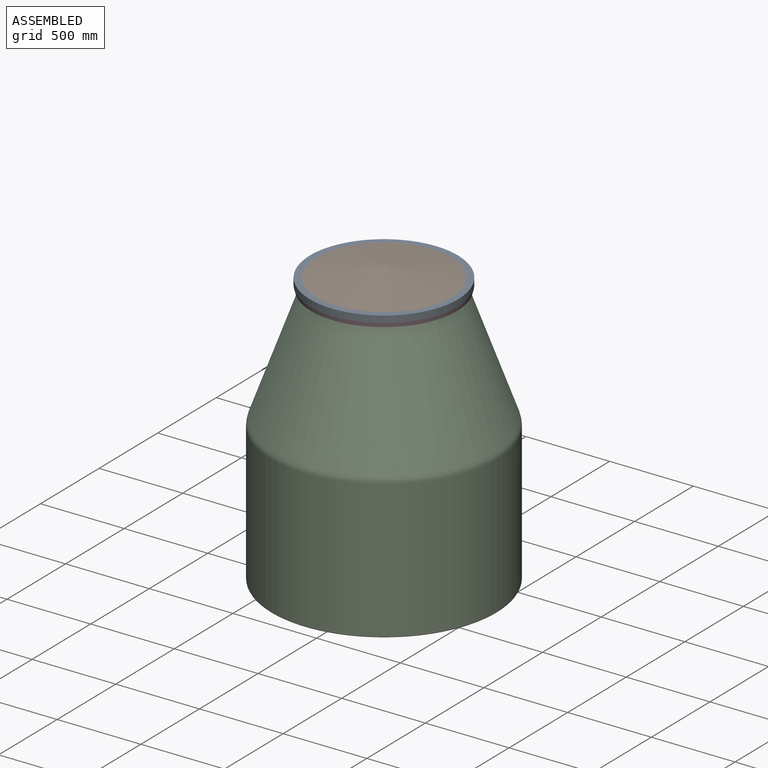
[diagram: assembled view]
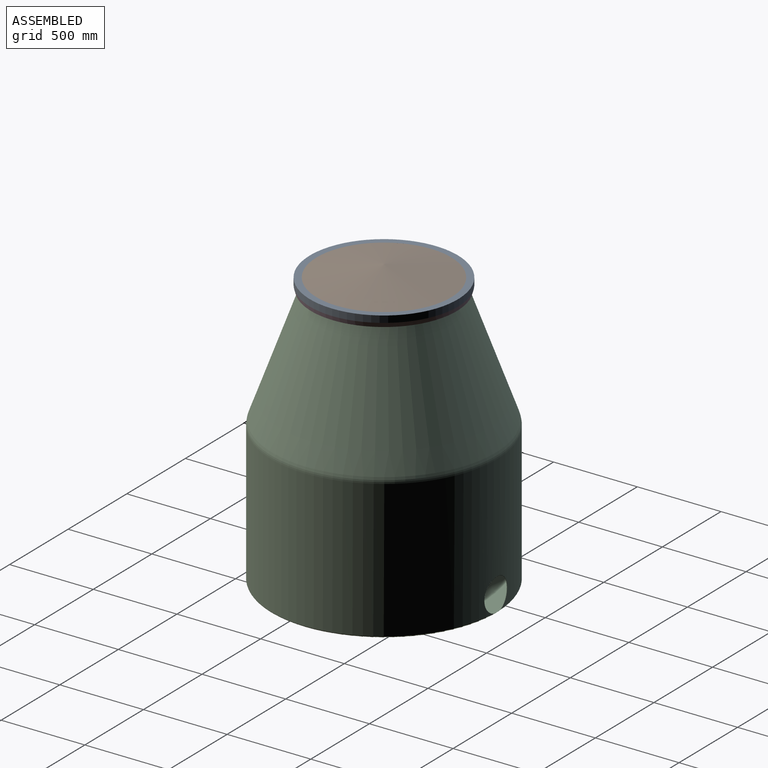
[diagram: assembled view, second angle]
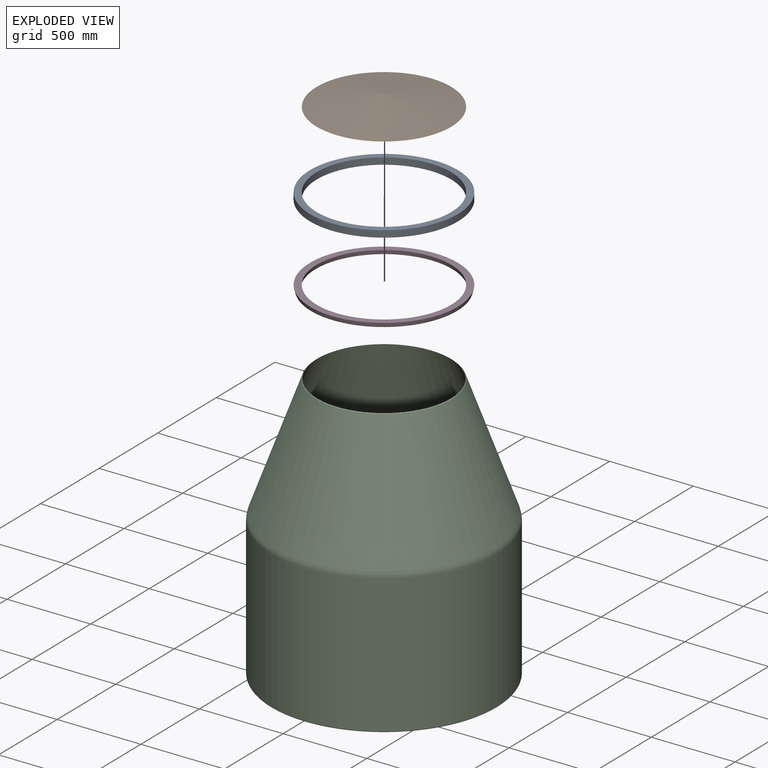
[diagram: exploded view]
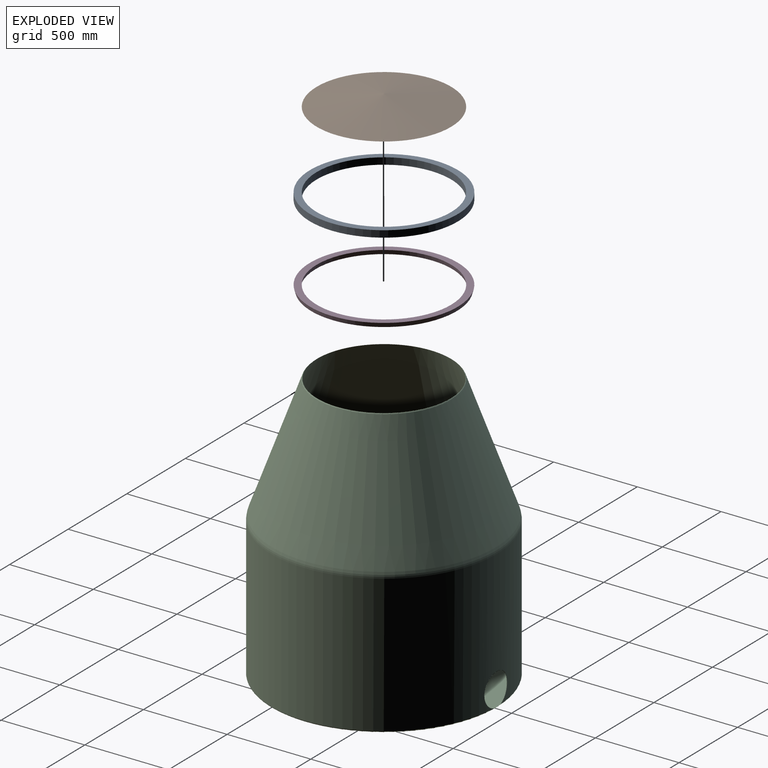
[diagram: exploded view, second angle]
ASSEMBLY  parts=4 mates=3
PART A: 4 faces, bbox 885.1x885.1x40 mm
  f0: cylinder r=442.57mm len=885.14mm, axis (0,0,-1), area 111229.5mm2, adj f1,f2
  f1: plane 885.14x885.14mm, normal (0,0,1), area 106203mm2, adj f0,f3
  f2: plane 885.14x885.14mm, normal (0,0,-1), area 106203mm2, adj f0,f3
  f3: cylinder r=402.57mm len=805.14mm, axis (0,0,1), area 101176.4mm2, adj f1,f2
PART B: 3 faces, bbox 805.1x805.1x71 mm
  f0: cone r=402.57mm half-angle=80deg, axis (0,0,-1), area 516984.5mm2, adj f1
  f1: plane 805.14x805.14mm, normal (0,0,-1), area 70226.8mm2, adj f0,f2
  f2: cone r=401.7mm half-angle=80deg, axis (0,0,-1), area 445674.3mm2, adj f1
PART C: 11 faces, bbox 1461.2x1461.2x1597.6 mm
  f0: cylinder r=675mm len=1350mm, axis (0,0,-1), area 3460221.9mm2, adj f2,f5,f10
  f1: cylinder r=672.46mm len=1344.92mm, axis (0,0,-1), area 3469890mm2, adj f6,f8,f10
  f2: torus R=667mm, axis (0,0,1), area 52815.4mm2, adj f0,f3,f10
  f3: plane 1334x1334mm, normal (0,0,-1), area 1397660mm2, adj f2
  f4: cone r=675mm half-angle=20deg, axis (0,0,-1), area 2609575.3mm2, adj f5,f9
  f5: torus R=575mm, axis (0,0,-1), area 147601.4mm2, adj f0,f4
  f6: plane 1344.92x1344.92mm, normal (0,0,1), area 1420635.9mm2, adj f1
  f7: cone r=672.61mm half-angle=20deg, axis (0,0,-1), area 2612695.1mm2, adj f8,f9
  f8: torus R=575mm, axis (0,0,-1), area 143320.3mm2, adj f1,f7
  f9: torus R=396.73mm, axis (0,0,1), area 16577.4mm2, adj f4,f7
  f10: cylinder r=97.46mm len=194.92mm, axis (0,1,0), area 1492.3mm2, adj f0,f1,f2
PART D: 4 faces, bbox 885.1x885.1x25.4 mm
  f0: cone r=402.57mm half-angle=15deg, axis (0,0,-1), area 67075.7mm2, adj f2,f3
  f1: cone r=442.57mm half-angle=15deg, axis (0,0,1), area 72560.1mm2, adj f2,f3
  f2: plane 871.52x871.52mm, normal (0,0,-1), area 70062.6mm2, adj f0,f1
  f3: plane 885.14x885.14mm, normal (0,0,1), area 106203mm2, adj f0,f1
PLACE A t=(-441.88,1777.89,3168.99)mm
PLACE B t=(-441.88,1777.89,3168.99)mm
PLACE C t=(-441.88,1777.89,1576.61)mm
PLACE D t=(-441.88,1777.89,1571.99)mm
MATE fastened A.f3 <-> C.f0  axis (0,0,-1) through (-441.88,1777.89,3168.99)mm
MATE fastened D.f1 <-> A.f0  axis (0,0,1) through (-441.88,1777.89,3168.99)mm
MATE fastened B.f0 <-> A.f3  axis (0,0,-1) through (-441.88,1777.89,3208.99)mm
